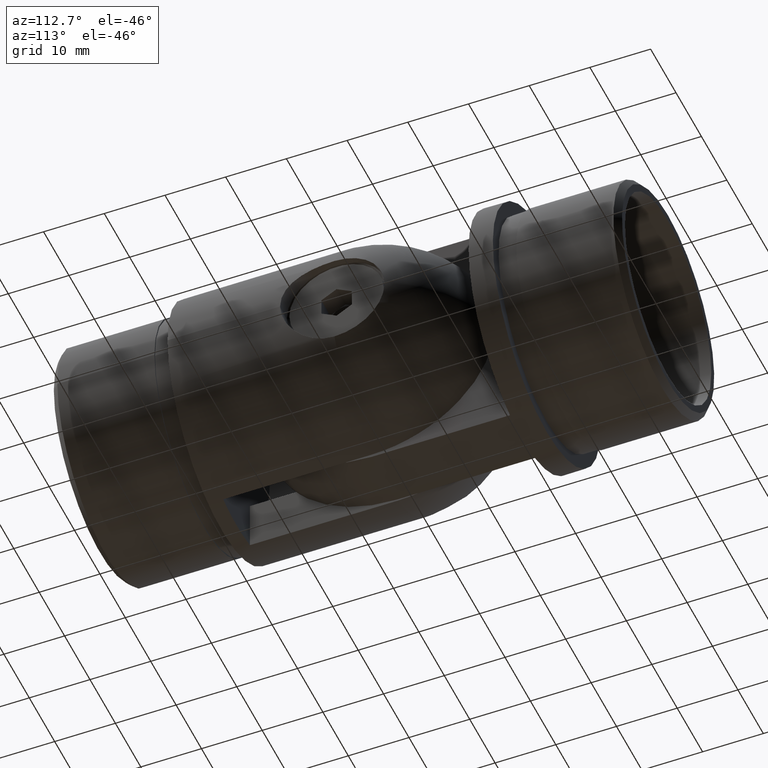
[diagram: clean part render]
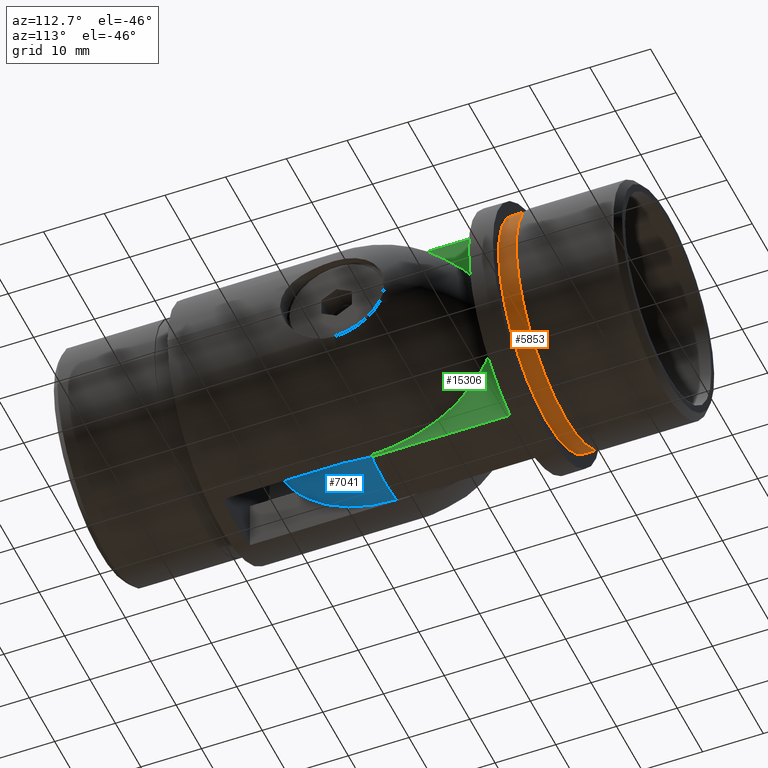
[diagram: same view with three faces highlighted in distinct colors, each labeled with its STEP entity id]
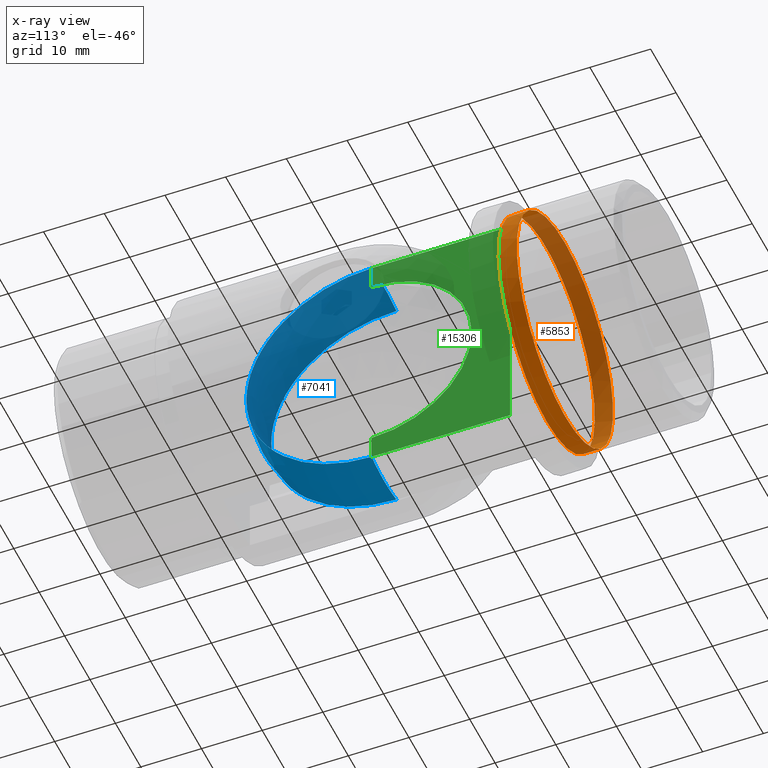
[diagram: x-ray of the same camera — body ghosted, the three highlighted faces saturated]
A machine part, auxiliary view with three faces highlighted in distinct colors.
The next image is the same camera in x-ray (body ghosted, the three faces saturated) — at least one of them is partly hidden behind the body in this view.
Their STEP definitions:

[orange] entity #5853 — the highlighted cylindrical surface (bore or boss wall) has radius 18.95 mm, axis along (-0, -1, 0).
#95 = DIRECTION ( 'NONE',  ( 0.0000000000000000000, 0.0000000000000000000, -1.000000000000000000 ) ) ;
#336 = AXIS2_PLACEMENT_3D ( 'NONE', #14568, #15955, #95 ) ;
#962 = CIRCLE ( 'NONE', #6934, 18.95000000000001000 ) ;
#986 = DIRECTION ( 'NONE',  ( 0.0000000000000000000, 0.0000000000000000000, 1.000000000000000000 ) ) ;
#2183 = DIRECTION ( 'NONE',  ( -0.0000000000000000000, -1.000000000000000000, -0.0000000000000000000 ) ) ;
#3081 = EDGE_CURVE ( 'NONE', #8237, #8237, #6023, .T. ) ;
#4472 = AXIS2_PLACEMENT_3D ( 'NONE', #11134, #11257, #986 ) ;
#5853 = ADVANCED_FACE ( 'NONE', ( #10914, #15204 ), #16089, .T. ) ;
#6023 = CIRCLE ( 'NONE', #336, 18.95000000000001000 ) ;
#6934 = AXIS2_PLACEMENT_3D ( 'NONE', #13603, #2183, #12240 ) ;
#7596 = EDGE_CURVE ( 'NONE', #11985, #11985, #962, .T. ) ;
#8237 = VERTEX_POINT ( 'NONE', #12314 ) ;
#10914 = FACE_OUTER_BOUND ( 'NONE', #11310, .T. ) ;
#11017 = ORIENTED_EDGE ( 'NONE', *, *, #3081, .F. ) ;
#11134 = CARTESIAN_POINT ( 'NONE',  ( 0.0000000000000000000, -3.000000000000000000, 0.0000000000000000000 ) ) ;
#11257 = DIRECTION ( 'NONE',  ( -0.0000000000000000000, 1.000000000000000000, -0.0000000000000000000 ) ) ;
#11310 = EDGE_LOOP ( 'NONE', ( #11017 ) ) ;
#11985 = VERTEX_POINT ( 'NONE', #13742 ) ;
#12240 = DIRECTION ( 'NONE',  ( 0.0000000000000000000, 0.0000000000000000000, 1.000000000000000000 ) ) ;
#12314 = CARTESIAN_POINT ( 'NONE',  ( 0.0000000000000000000, -3.000000000000000000, -18.95000000000001000 ) ) ;
#13603 = CARTESIAN_POINT ( 'NONE',  ( 0.0000000000000000000, 0.0000000000000000000, 0.0000000000000000000 ) ) ;
#13742 = CARTESIAN_POINT ( 'NONE',  ( 0.0000000000000000000, 0.0000000000000000000, 18.95000000000001000 ) ) ;
#14568 = CARTESIAN_POINT ( 'NONE',  ( 0.0000000000000000000, -3.000000000000000000, 0.0000000000000000000 ) ) ;
#15204 = FACE_OUTER_BOUND ( 'NONE', #17527, .T. ) ;
#15955 = DIRECTION ( 'NONE',  ( 0.0000000000000000000, -1.000000000000000000, 0.0000000000000000000 ) ) ;
#16089 = CYLINDRICAL_SURFACE ( 'NONE', #4472, 18.95000000000001000 ) ;
#17527 = EDGE_LOOP ( 'NONE', ( #18637 ) ) ;
#18637 = ORIENTED_EDGE ( 'NONE', *, *, #7596, .T. ) ;

[blue] entity #7041 — the highlighted spherical surface has radius 21.2 mm.
#1387 = DIRECTION ( 'NONE',  ( -1.000000000000000000, -0.0000000000000000000, 0.0000000000000000000 ) ) ;
#1482 = CARTESIAN_POINT ( 'NONE',  ( 0.0000000000000000000, 26.79999999999999700, 3.469446951953614200E-015 ) ) ;
#1634 = FACE_OUTER_BOUND ( 'NONE', #5755, .T. ) ;
#1660 = CARTESIAN_POINT ( 'NONE',  ( -4.899999999999999500, 26.80000000000000100, -20.62595452336691400 ) ) ;
#2386 = CARTESIAN_POINT ( 'NONE',  ( -4.899999999999999500, 26.79999999999999700, 0.0000000000000000000 ) ) ;
#2551 = CARTESIAN_POINT ( 'NONE',  ( 4.900000000000001200, 26.79999999999999700, 20.62595452336691800 ) ) ;
#2814 = CARTESIAN_POINT ( 'NONE',  ( 4.900000000000001200, 26.79999999999999700, 0.0000000000000000000 ) ) ;
#3029 = VERTEX_POINT ( 'NONE', #1660 ) ;
#3250 = DIRECTION ( 'NONE',  ( 0.0000000000000000000, -1.000000000000000000, -1.224646799147353200E-016 ) ) ;
#3300 = EDGE_CURVE ( 'NONE', #10443, #3029, #10730, .T. ) ;
#4232 = AXIS2_PLACEMENT_3D ( 'NONE', #2386, #5157, #16581 ) ;
#4499 = ORIENTED_EDGE ( 'NONE', *, *, #3300, .F. ) ;
#4881 = DIRECTION ( 'NONE',  ( 0.0000000000000000000, 0.0000000000000000000, 1.000000000000000000 ) ) ;
#4956 = CARTESIAN_POINT ( 'NONE',  ( 4.900000000000001200, 26.80000000000000100, -20.62595452336691800 ) ) ;
#5007 = DIRECTION ( 'NONE',  ( 0.0000000000000000000, 1.000000000000000000, 0.0000000000000000000 ) ) ;
#5157 = DIRECTION ( 'NONE',  ( -1.000000000000000000, -0.0000000000000000000, 0.0000000000000000000 ) ) ;
#5712 = DIRECTION ( 'NONE',  ( 0.0000000000000000000, 0.0000000000000000000, 1.000000000000000000 ) ) ;
#5750 = AXIS2_PLACEMENT_3D ( 'NONE', #9173, #5007, #4881 ) ;
#5755 = EDGE_LOOP ( 'NONE', ( #17128, #14317, #17898, #4499 ) ) ;
#6289 = CIRCLE ( 'NONE', #14757, 21.19999999999999900 ) ;
#6616 = CIRCLE ( 'NONE', #17992, 20.62595452336691800 ) ;
#7041 = ADVANCED_FACE ( 'NONE', ( #1634 ), #15613, .T. ) ;
#8808 = EDGE_CURVE ( 'NONE', #15321, #15160, #6616, .T. ) ;
#8991 = DIRECTION ( 'NONE',  ( 0.0000000000000000000, 1.636531581110195400E-016, -1.000000000000000000 ) ) ;
#9173 = CARTESIAN_POINT ( 'NONE',  ( 0.0000000000000000000, 26.79999999999999700, 3.469446951953614200E-015 ) ) ;
#10022 = DIRECTION ( 'NONE',  ( 0.0000000000000000000, 0.0000000000000000000, 1.000000000000000000 ) ) ;
#10443 = VERTEX_POINT ( 'NONE', #14778 ) ;
#10536 = CIRCLE ( 'NONE', #5750, 21.19999999999999900 ) ;
#10730 = CIRCLE ( 'NONE', #4232, 20.62595452336691400 ) ;
#12317 = AXIS2_PLACEMENT_3D ( 'NONE', #1482, #18622, #10022 ) ;
#13132 = CARTESIAN_POINT ( 'NONE',  ( 0.0000000000000000000, 26.79999999999999700, -3.469446951953614200E-015 ) ) ;
#14291 = EDGE_CURVE ( 'NONE', #3029, #15160, #6289, .T. ) ;
#14317 = ORIENTED_EDGE ( 'NONE', *, *, #8808, .T. ) ;
#14338 = EDGE_CURVE ( 'NONE', #10443, #15321, #10536, .T. ) ;
#14757 = AXIS2_PLACEMENT_3D ( 'NONE', #13132, #3250, #8991 ) ;
#14778 = CARTESIAN_POINT ( 'NONE',  ( -4.899999999999999500, 26.79999999999999700, 20.62595452336691400 ) ) ;
#15160 = VERTEX_POINT ( 'NONE', #4956 ) ;
#15321 = VERTEX_POINT ( 'NONE', #2551 ) ;
#15613 = SPHERICAL_SURFACE ( 'NONE', #12317, 21.19999999999999900 ) ;
#16581 = DIRECTION ( 'NONE',  ( 0.0000000000000000000, 0.0000000000000000000, 1.000000000000000000 ) ) ;
#17128 = ORIENTED_EDGE ( 'NONE', *, *, #14338, .T. ) ;
#17898 = ORIENTED_EDGE ( 'NONE', *, *, #14291, .F. ) ;
#17992 = AXIS2_PLACEMENT_3D ( 'NONE', #2814, #1387, #5712 ) ;
#18622 = DIRECTION ( 'NONE',  ( -0.0000000000000000000, 1.000000000000000000, 0.0000000000000000000 ) ) ;

[green] entity #15306 — the highlighted planar face has unit normal (1, -0, -0).
#50 = PLANE ( 'NONE',  #10685 ) ;
#140 = DIRECTION ( 'NONE',  ( 2.628368902995161500E-016, 0.0000000000000000000, -1.000000000000000000 ) ) ;
#987 = LINE ( 'NONE', #14779, #17873 ) ;
#1376 = VERTEX_POINT ( 'NONE', #7599 ) ;
#1380 = VECTOR ( 'NONE', #15073, 1000.000000000000000 ) ;
#1653 = CARTESIAN_POINT ( 'NONE',  ( 4.900000000000000400, 4.000000000000000000, 20.62595452336691100 ) ) ;
#2136 = EDGE_CURVE ( 'NONE', #15160, #4202, #18432, .T. ) ;
#2482 = CARTESIAN_POINT ( 'NONE',  ( 4.900000000000000400, 26.79999999999999700, 16.50000000000001400 ) ) ;
#2551 = CARTESIAN_POINT ( 'NONE',  ( 4.900000000000001200, 26.79999999999999700, 20.62595452336691800 ) ) ;
#2877 = DIRECTION ( 'NONE',  ( 1.000000000000000000, -3.726309866894354800E-032, 2.448801383671572500E-016 ) ) ;
#3344 = EDGE_CURVE ( 'NONE', #15160, #1376, #17028, .T. ) ;
#3574 = ORIENTED_EDGE ( 'NONE', *, *, #17968, .T. ) ;
#4202 = VERTEX_POINT ( 'NONE', #10837 ) ;
#4427 = CARTESIAN_POINT ( 'NONE',  ( 4.899999999999999500, 26.79999999999999700, -10.00000000000000400 ) ) ;
#4956 = CARTESIAN_POINT ( 'NONE',  ( 4.900000000000001200, 26.80000000000000100, -20.62595452336691800 ) ) ;
#5081 = LINE ( 'NONE', #15040, #6904 ) ;
#5696 = DIRECTION ( 'NONE',  ( 1.632534255781048500E-016, 0.0000000000000000000, -1.000000000000000000 ) ) ;
#5708 = LINE ( 'NONE', #18160, #1380 ) ;
#6190 = VERTEX_POINT ( 'NONE', #1653 ) ;
#6201 = DIRECTION ( 'NONE',  ( -1.632534255781048500E-016, -0.0000000000000000000, -1.000000000000000000 ) ) ;
#6519 = FACE_OUTER_BOUND ( 'NONE', #9901, .T. ) ;
#6686 = EDGE_CURVE ( 'NONE', #15321, #6190, #5081, .T. ) ;
#6904 = VECTOR ( 'NONE', #16228, 1000.000000000000000 ) ;
#6916 = ORIENTED_EDGE ( 'NONE', *, *, #3344, .F. ) ;
#7127 = ORIENTED_EDGE ( 'NONE', *, *, #6686, .T. ) ;
#7366 = CARTESIAN_POINT ( 'NONE',  ( 4.899999999999999500, 26.79999999999999700, -10.00000000000000400 ) ) ;
#7599 = CARTESIAN_POINT ( 'NONE',  ( 4.900000000000001200, 4.000000000000000000, -20.62595452336691800 ) ) ;
#8652 = EDGE_CURVE ( 'NONE', #15321, #13077, #5708, .T. ) ;
#9573 = DIRECTION ( 'NONE',  ( 0.0000000000000000000, -1.000000000000000000, 0.0000000000000000000 ) ) ;
#9752 = DIRECTION ( 'NONE',  ( -1.632534255781048500E-016, -1.224646799147353200E-016, 1.000000000000000000 ) ) ;
#9901 = EDGE_LOOP ( 'NONE', ( #17526, #14224, #7127, #3574, #6916, #14545 ) ) ;
#10531 = VECTOR ( 'NONE', #9752, 1000.000000000000000 ) ;
#10685 = AXIS2_PLACEMENT_3D ( 'NONE', #4427, #17113, #5696 ) ;
#10723 = CIRCLE ( 'NONE', #17675, 16.50000000000000400 ) ;
#10837 = CARTESIAN_POINT ( 'NONE',  ( 4.900000000000002100, 26.80000000000000100, -16.49999999999999300 ) ) ;
#13077 = VERTEX_POINT ( 'NONE', #2482 ) ;
#14094 = VECTOR ( 'NONE', #9573, 1000.000000000000000 ) ;
#14224 = ORIENTED_EDGE ( 'NONE', *, *, #8652, .F. ) ;
#14545 = ORIENTED_EDGE ( 'NONE', *, *, #2136, .T. ) ;
#14779 = CARTESIAN_POINT ( 'NONE',  ( 4.899999999999999500, 4.000000000000000000, 10.00000000000000000 ) ) ;
#15040 = CARTESIAN_POINT ( 'NONE',  ( 4.900000000000001200, 26.79999999999999700, 20.62595452336691800 ) ) ;
#15073 = DIRECTION ( 'NONE',  ( -1.632534255781048500E-016, -0.0000000000000000000, -1.000000000000000000 ) ) ;
#15160 = VERTEX_POINT ( 'NONE', #4956 ) ;
#15306 = ADVANCED_FACE ( 'NONE', ( #6519 ), #50, .T. ) ;
#15321 = VERTEX_POINT ( 'NONE', #2551 ) ;
#16228 = DIRECTION ( 'NONE',  ( -0.0000000000000000000, -1.000000000000000000, -1.521687259628778300E-016 ) ) ;
#16338 = EDGE_CURVE ( 'NONE', #13077, #4202, #10723, .T. ) ;
#16641 = CARTESIAN_POINT ( 'NONE',  ( 4.900000000000001200, 26.80000000000000100, -20.62595452336691800 ) ) ;
#17028 = LINE ( 'NONE', #16641, #14094 ) ;
#17113 = DIRECTION ( 'NONE',  ( 1.000000000000000000, 0.0000000000000000000, 1.632534255781048500E-016 ) ) ;
#17448 = CARTESIAN_POINT ( 'NONE',  ( 4.899999999999997700, 26.79999999999999700, 1.017731500694536500E-014 ) ) ;
#17526 = ORIENTED_EDGE ( 'NONE', *, *, #16338, .F. ) ;
#17675 = AXIS2_PLACEMENT_3D ( 'NONE', #17448, #2877, #140 ) ;
#17873 = VECTOR ( 'NONE', #6201, 1000.000000000000000 ) ;
#17968 = EDGE_CURVE ( 'NONE', #6190, #1376, #987, .T. ) ;
#18160 = CARTESIAN_POINT ( 'NONE',  ( 4.899999999999999500, 26.79999999999999700, 10.00000000000000400 ) ) ;
#18432 = LINE ( 'NONE', #7366, #10531 ) ;